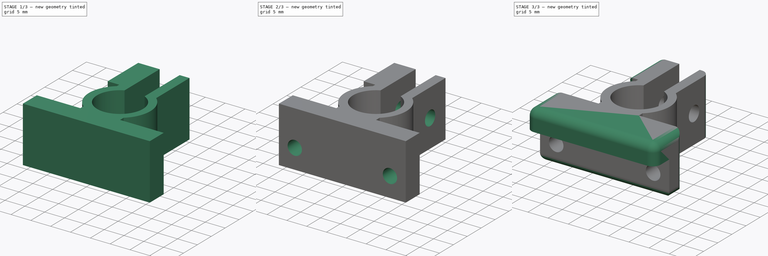
[diagram: build sequence overview — one tinted view per stage of 3, left to right]
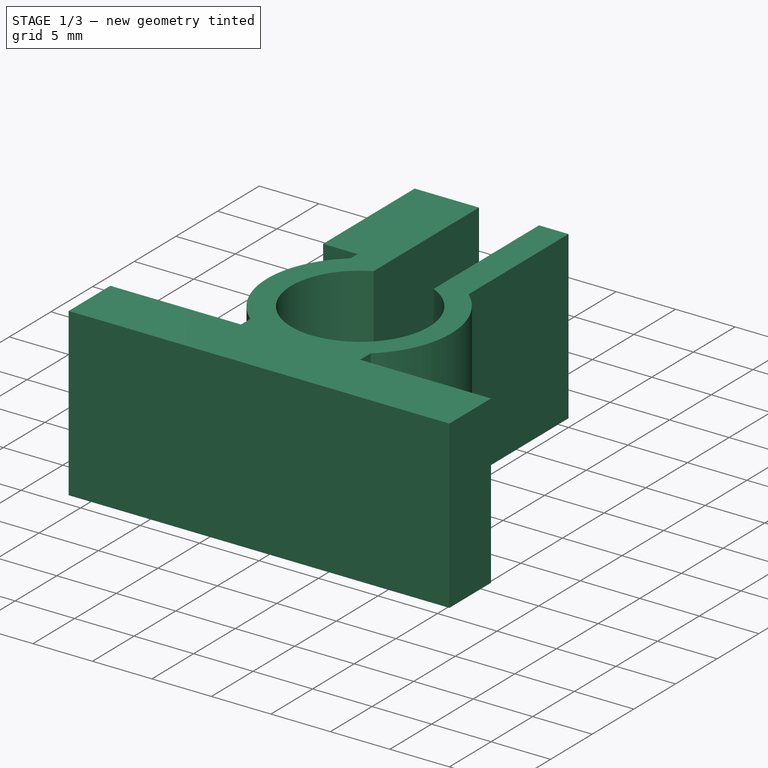
[diagram: stage 1 of 3 — iso view after this stage's code; geometry added in this stage tinted green]
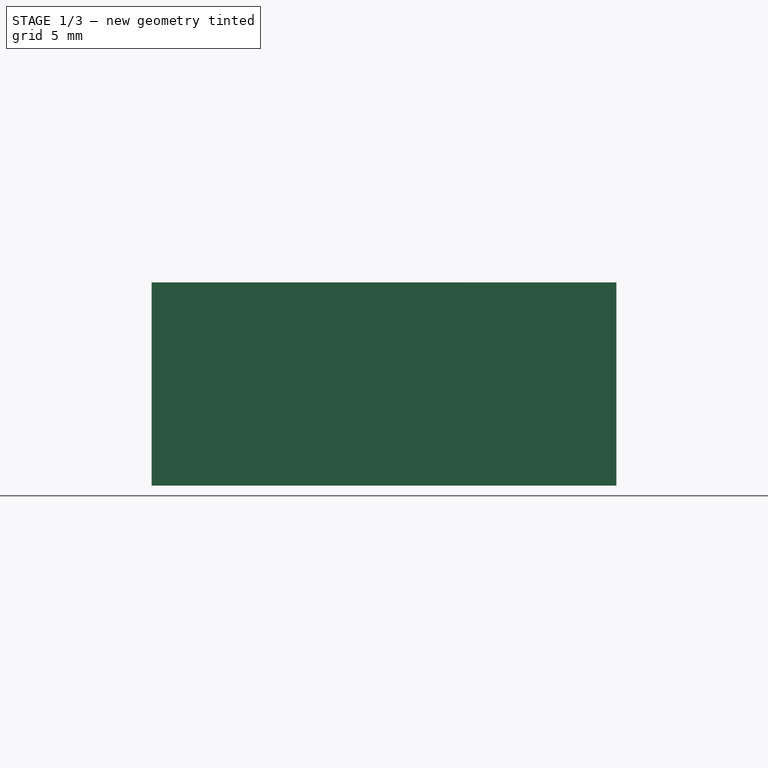
[diagram: stage 1 of 3 — front view after this stage's code; geometry added in this stage tinted green]
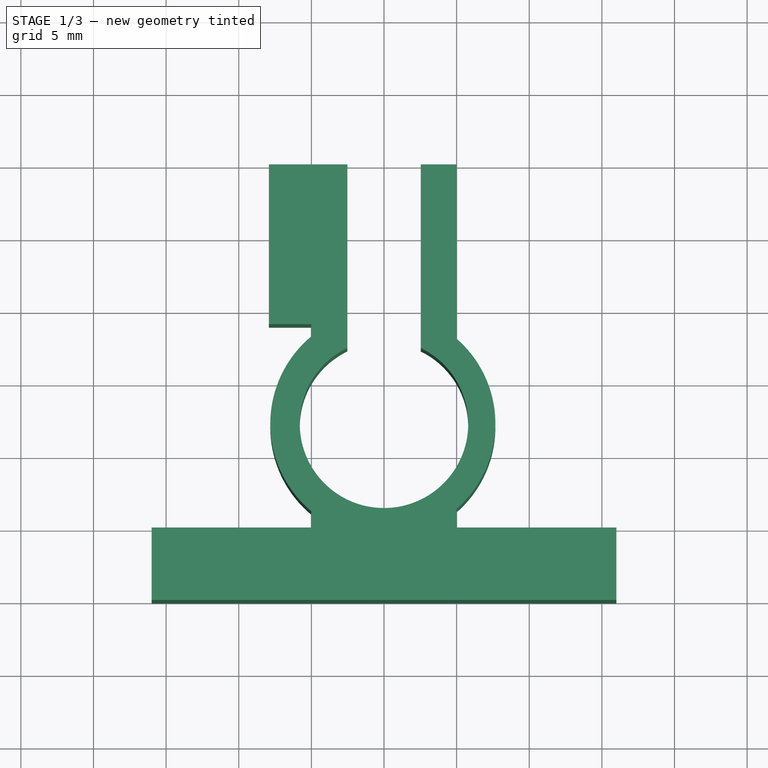
[diagram: stage 1 of 3 — top view after this stage's code; geometry added in this stage tinted green]
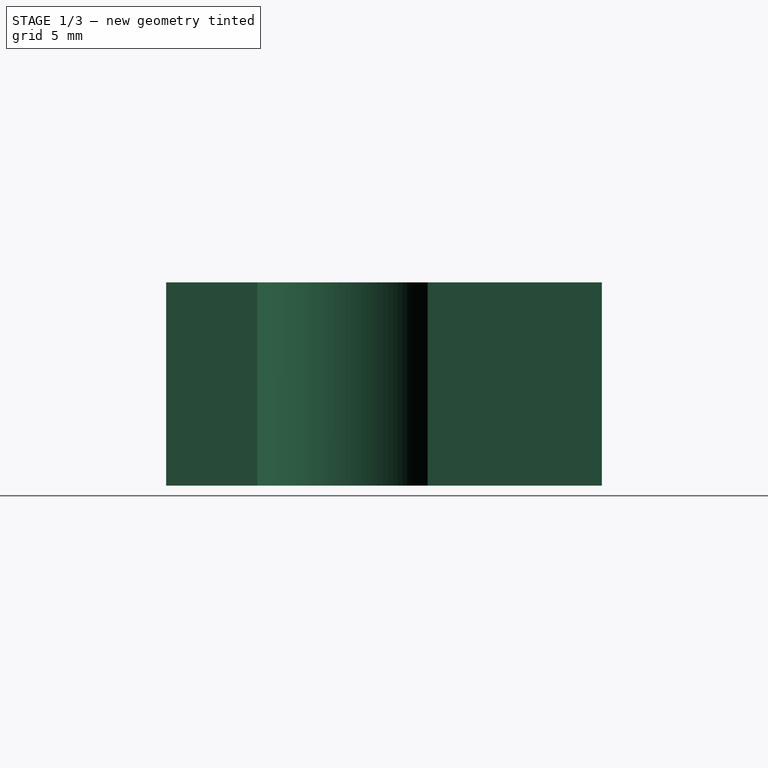
[diagram: stage 1 of 3 — right view after this stage's code; geometry added in this stage tinted green]
FCSTD DOCUMENT  (FreeCAD 0.16R6698 (Git))
Label: pnp camera holder
License: All rights reserved
LicenseURL: http://en.wikipedia.org/wiki/All_rights_reserved
objects: Sketcher::SketchObject×6, PartDesign::Pocket×4, PartDesign::Pad×2, PartDesign::Fillet×1
note: 19 computed .brp shape members not serialized (recipe doc carries the construction recipe); baked Part::Feature solids carry a one-line shape summary decoded from their .brp

FEATURE [Sketcher::SketchObject] Sketch
  sketch-geometry (11):
    g0: LineSegment StartX=-8 StartY=30 StartZ=0 EndX=8 EndY=30 EndZ=0
    g1: LineSegment StartX=8 StartY=30 StartZ=0 EndX=8 EndY=5 EndZ=0
    g2: LineSegment StartX=8 StartY=0 StartZ=0 EndX=-8 EndY=0 EndZ=0
    g3: LineSegment StartX=-8 StartY=5 StartZ=0 EndX=-8 EndY=30 EndZ=0
    g4: LineSegment StartX=-16 StartY=5 StartZ=0 EndX=-8 EndY=5 EndZ=0
    g5: LineSegment StartX=16 StartY=5 StartZ=0 EndX=16 EndY=0 EndZ=0
    g6: LineSegment StartX=16 StartY=0 StartZ=0 EndX=-16 EndY=0 EndZ=0
    g7: LineSegment StartX=-16 StartY=0 StartZ=0 EndX=-16 EndY=5 EndZ=0
    g8: LineSegment StartX=8 StartY=5 StartZ=0 EndX=16 EndY=5 EndZ=0
    g9: Circle [constr] CenterX=-12.1577 CenterY=-2 CenterZ=0 NormalX=0 NormalY=0 NormalZ=1 Radius=2.5
    g10: Circle [constr] CenterX=11.8423 CenterY=-2 CenterZ=0 NormalX=0 NormalY=0 NormalZ=1 Radius=2.5
  constraints (26):
    c: Coincident(g0,g1)
    c: Coincident(g3,g0)
    c: Horizontal(g0)
    c: Horizontal(g2)
    c: Vertical(g1)
    c: Vertical(g3)
    c: Symmetric(g0,g0,g-2)
    c: DistanceX(g0,g0) = 16
    c: PointOnObject(g2,g-1)
    c: DistanceY(g2,g3) = 30
    c: Coincident(g8,g5)
    c: Coincident(g5,g6)
    c: Coincident(g6,g7)
    c: Coincident(g7,g4)
    c: Horizontal(g4)
    c: Horizontal(g6)
    c: Vertical(g5)
    c: Vertical(g7)
    c: PointOnObject(g5,g-1)
    c: Symmetric(g4,g8,g-2)
    c: Coincident(g4,g3)
    c: Coincident(g8,g1)
    c: Tangent(g4,g8)
    c: DistanceX(g9,g10) = 24
    c: Radius(g9) = 2.5
    c: Equal(g9,g10)
FEATURE [PartDesign::Pad] Pad
  Length = 14
  Length2 = 100
  Sketch = -> Sketch
  Type = 0
FEATURE [Sketcher::SketchObject] Sketch002
  Placement = pos=(0,0,14) rot=(0,0,1;0rad)
  Support = -> Pad [Face10]
  sketch-geometry (18):
    g0: ArcOfCircle CenterX=0 CenterY=12.1385 CenterZ=0 NormalX=0 NormalY=0 NormalZ=1 Radius=7.83109 StartAngle=2.26545 EndAngle=4.01774
    g1: LineSegment StartX=5 StartY=31 StartZ=0 EndX=5 EndY=18 EndZ=0
    g2: LineSegment StartX=-5.01282 StartY=5 StartZ=0 EndX=-5.01282 EndY=6.12202 EndZ=0
    g3: ArcOfCircle CenterX=-0.0982917 CenterY=12.1385 CenterZ=0 NormalX=0 NormalY=0 NormalZ=1 Radius=7.76854 StartAngle=5.42826 EndAngle=7.13811
    g4: LineSegment StartX=-5.01282 StartY=18.1549 StartZ=0 EndX=-5.01282 EndY=19 EndZ=0
    g5: LineSegment StartX=5 StartY=6.27693 StartZ=0 EndX=5 EndY=5 EndZ=0
    g6: LineSegment StartX=5 StartY=31 StartZ=0 EndX=10 EndY=31 EndZ=0
    g7: LineSegment StartX=10 StartY=31 StartZ=0 EndX=10 EndY=5 EndZ=0
    g8: LineSegment StartX=10 StartY=5 StartZ=0 EndX=5 EndY=5 EndZ=0
    g9: LineSegment StartX=-7.92222 StartY=30.9444 StartZ=0 EndX=-8.89038 EndY=30.9264 EndZ=0
    g10: LineSegment StartX=-8.89038 StartY=30.9264 StartZ=0 EndX=-8.96816 EndY=5 EndZ=0
    g11: LineSegment StartX=-8.96816 StartY=5 StartZ=0 EndX=-5.01282 EndY=5 EndZ=0
    g12: ArcOfCircle CenterX=0 CenterY=12.1385 CenterZ=0 NormalX=0 NormalY=0 NormalZ=1 Radius=5.8 StartAngle=2.02048 EndAngle=7.40325
    g13: LineSegment StartX=-2.52114 StartY=31 StartZ=0 EndX=2.5266 EndY=31 EndZ=0
    g14: LineSegment StartX=2.5266 StartY=31 StartZ=0 EndX=2.5266 EndY=17.3592 EndZ=0
    g15: LineSegment StartX=-2.52114 StartY=17.3619 StartZ=0 EndX=-2.52114 EndY=31 EndZ=0
    g16: LineSegment StartX=-5.01282 StartY=19 StartZ=0 EndX=-7.92222 EndY=19 EndZ=0
    g17: LineSegment StartX=-7.92222 StartY=19 StartZ=0 EndX=-7.92222 EndY=30.9444 EndZ=0
  constraints (25):
    c: Coincident(g0,g2)
    c: Coincident(g4,g0)
    c: Coincident(g1,g3)
    c: Coincident(g6,g1)
    c: Coincident(g11,g2)
    c: Coincident(g5,g3)
    c: Coincident(g5,g8)
    c: Coincident(g6,g7)
    c: Coincident(g7,g8)
    c: Coincident(g10,g9)
    c: Coincident(g11,g10)
    c: Coincident(g12,g0)
    c: Radius(g12) = 5.8
    c: Coincident(g13,g14)
    c: Coincident(g15,g13)
    c: Horizontal(g13)
    c: Vertical(g14)
    c: Vertical(g15)
    c: Coincident(g14,g12)
    c: Coincident(g15,g12)
    c: Coincident(g16,g17)
    c: Horizontal(g16)
    c: Vertical(g17)
    c: Coincident(g17,g9)
    c: Coincident(g16,g4)
FEATURE [PartDesign::Pocket] Pocket
  Length = 5
  Sketch = -> Sketch002
  Type = 1
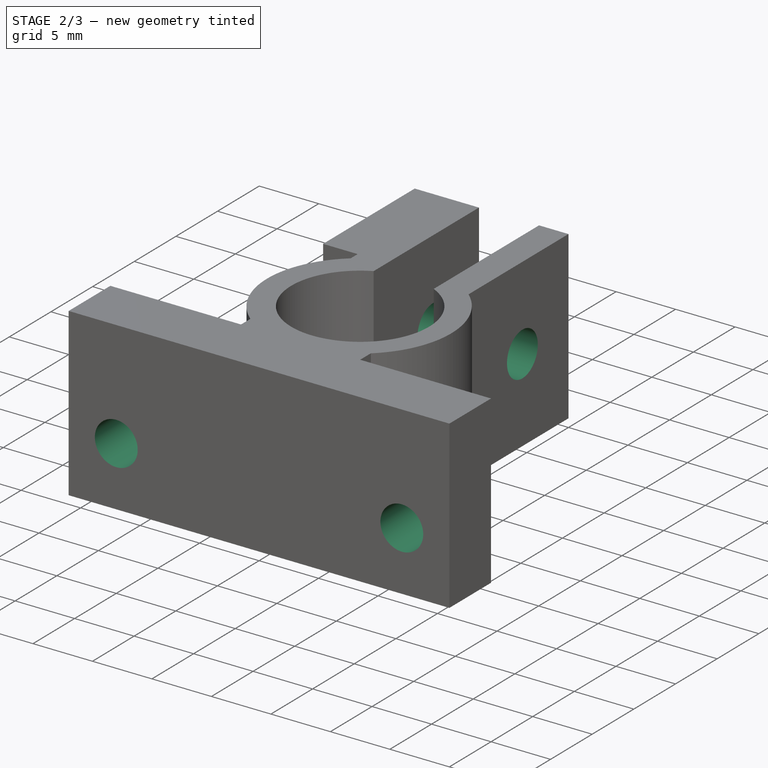
[diagram: stage 2 of 3 — iso view after this stage's code; geometry added in this stage tinted green]
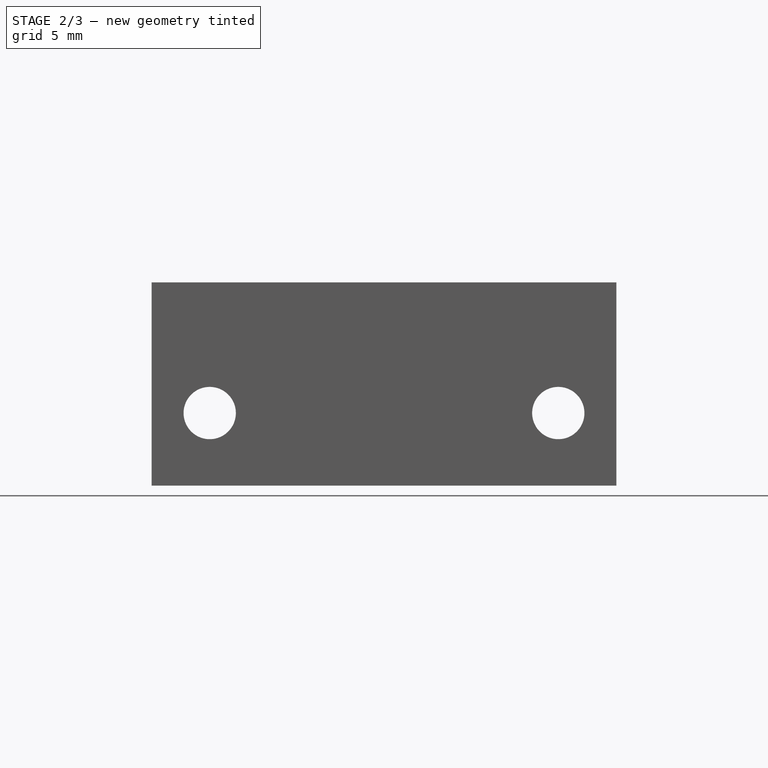
[diagram: stage 2 of 3 — front view after this stage's code; geometry added in this stage tinted green]
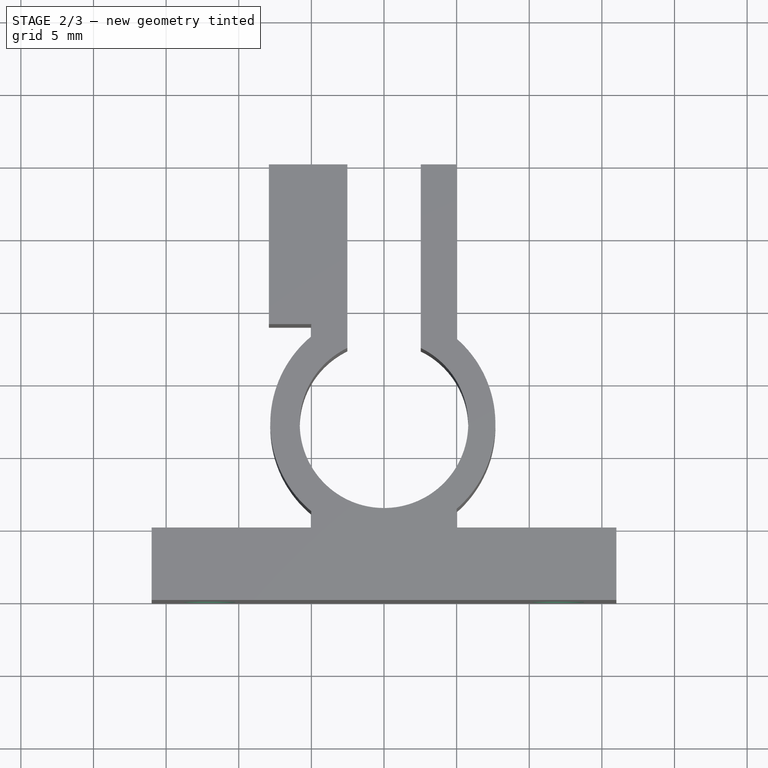
[diagram: stage 2 of 3 — top view after this stage's code; geometry added in this stage tinted green]
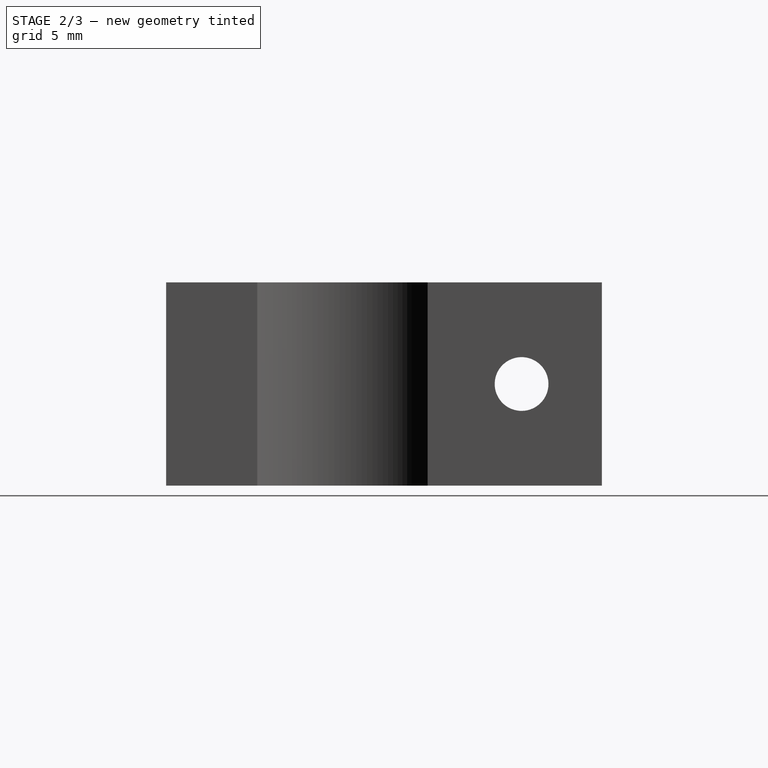
[diagram: stage 2 of 3 — right view after this stage's code; geometry added in this stage tinted green]
FEATURE [Sketcher::SketchObject] Sketch006
  Placement = pos=(-7.92222,0,0) rot=(0.57735,-0.57735,-0.57735;2.0944rad)
  Support = -> Pocket [Face5]
  sketch-geometry (7):
    g0: LineSegment StartX=-21.0862 StartY=5.03701 StartZ=0 EndX=-21.0862 EndY=8.96299 EndZ=0
    g1: LineSegment StartX=-21.0862 StartY=8.96299 StartZ=0 EndX=-24.4862 EndY=10.926 EndZ=0
    g2: LineSegment StartX=-24.4862 StartY=10.926 StartZ=0 EndX=-27.8862 EndY=8.96299 EndZ=0
    g3: LineSegment StartX=-27.8862 StartY=8.96299 StartZ=0 EndX=-27.8862 EndY=5.03701 EndZ=0
    g4: LineSegment StartX=-27.8862 StartY=5.03701 StartZ=0 EndX=-24.4862 EndY=3.07402 EndZ=0
    g5: LineSegment StartX=-24.4862 StartY=3.07402 StartZ=0 EndX=-21.0862 EndY=5.03701 EndZ=0
    g6: Circle [constr] CenterX=-24.4862 CenterY=7 CenterZ=0 NormalX=0 NormalY=0 NormalZ=1 Radius=3.92598
  constraints (15):
    c: Coincident(g0,g1)
    c: Coincident(g1,g2)
    c: Coincident(g2,g3)
    c: Coincident(g3,g4)
    c: Coincident(g4,g5)
    c: Coincident(g5,g0)
    c: Equal(g0, g1-g5) x5
    c: PointOnObject(g0,g6)
    c: PointOnObject(g1,g6)
    c: PointOnObject(g2,g6)
    c: PointOnObject(g3,g6)
    c: PointOnObject(g4,g6)
    c: PointOnObject(g5,g6)
    c: Vertical(g3)
    c: Distance(g2,g0) = 6.8
FEATURE [PartDesign::Pocket] Pocket001
  Length = 3
  Sketch = -> Sketch006
  Type = 0
FEATURE [Sketcher::SketchObject] Sketch007
  ExternalGeometry = -> [Pocket001]
  Placement = pos=(5,-1e-12,0) rot=(0.57735,0.57735,0.57735;2.0944rad)
  Support = -> Pocket001 [Face9]
  sketch-geometry (1):
    g0: Circle CenterX=24.4722 CenterY=7 CenterZ=0 NormalX=0 NormalY=0 NormalZ=1 Radius=1.85
  constraints (1):
    c: Radius(g0) = 1.85
FEATURE [PartDesign::Pocket] Pocket002
  Length = 5
  Sketch = -> Sketch007
  Type = 1
FEATURE [Sketcher::SketchObject] Sketch008
  Placement = pos=(0,0,0) rot=(1,0,0;1.5708rad)
  Support = -> Pocket002 [Face14]
  sketch-geometry (2):
    g0: Circle CenterX=-12 CenterY=5 CenterZ=0 NormalX=0 NormalY=0 NormalZ=1 Radius=1.8
    g1: Circle CenterX=12 CenterY=5 CenterZ=0 NormalX=0 NormalY=0 NormalZ=1 Radius=1.8
  constraints (3):
    c: Radius(g0) = 1.8
    c: Equal(g0,g1)
    c: DistanceX(g0,g1) = 24
FEATURE [PartDesign::Pocket] Pocket003
  Length = 5
  Sketch = -> Sketch008
  Type = 0
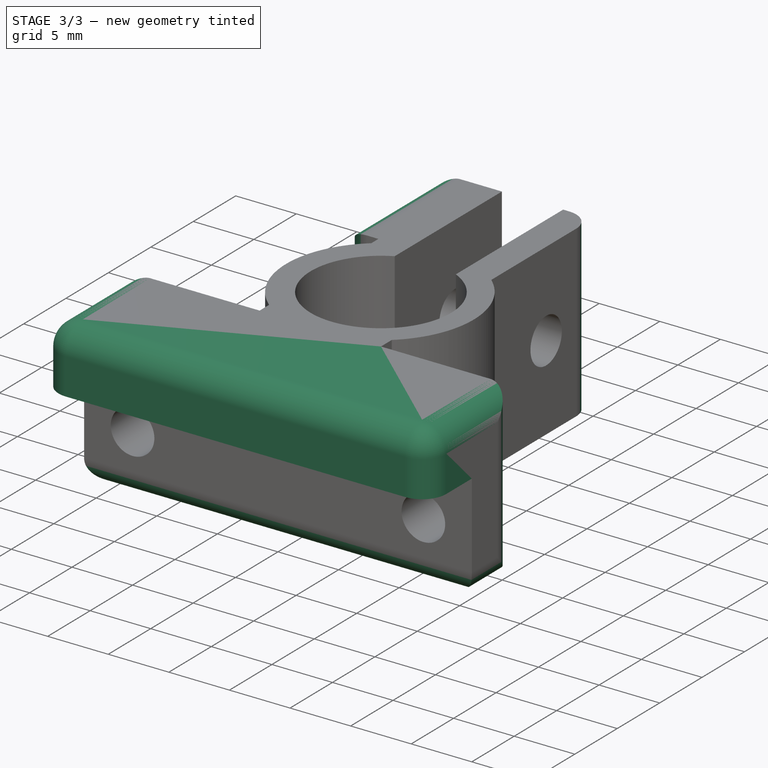
[diagram: stage 3 of 3 — iso view after this stage's code; geometry added in this stage tinted green]
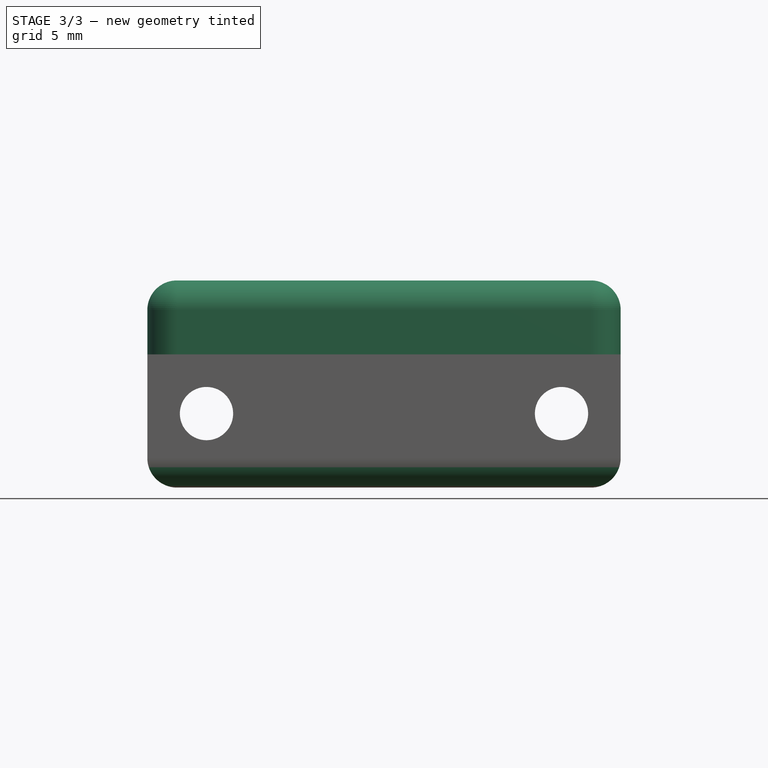
[diagram: stage 3 of 3 — front view after this stage's code; geometry added in this stage tinted green]
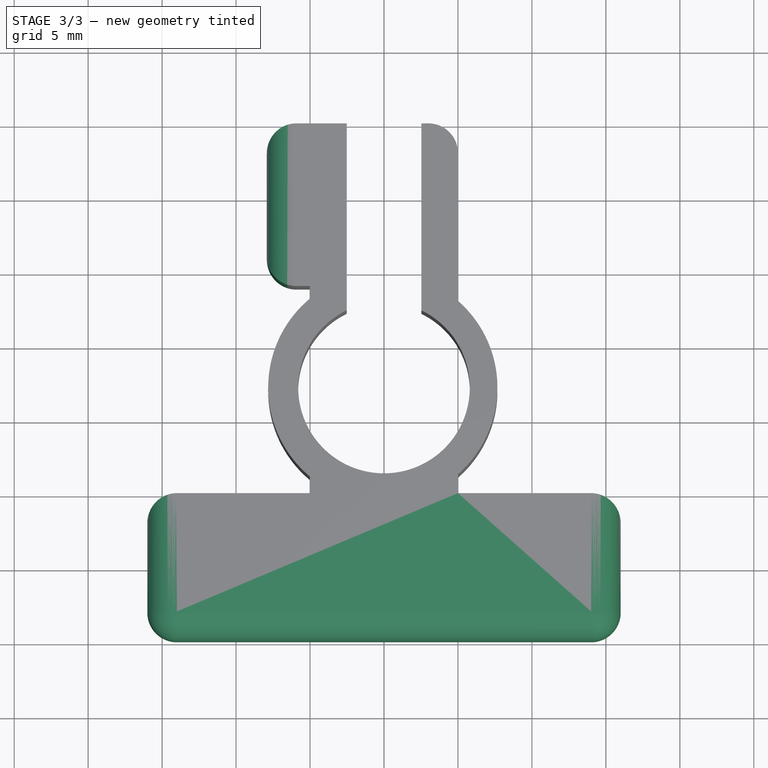
[diagram: stage 3 of 3 — top view after this stage's code; geometry added in this stage tinted green]
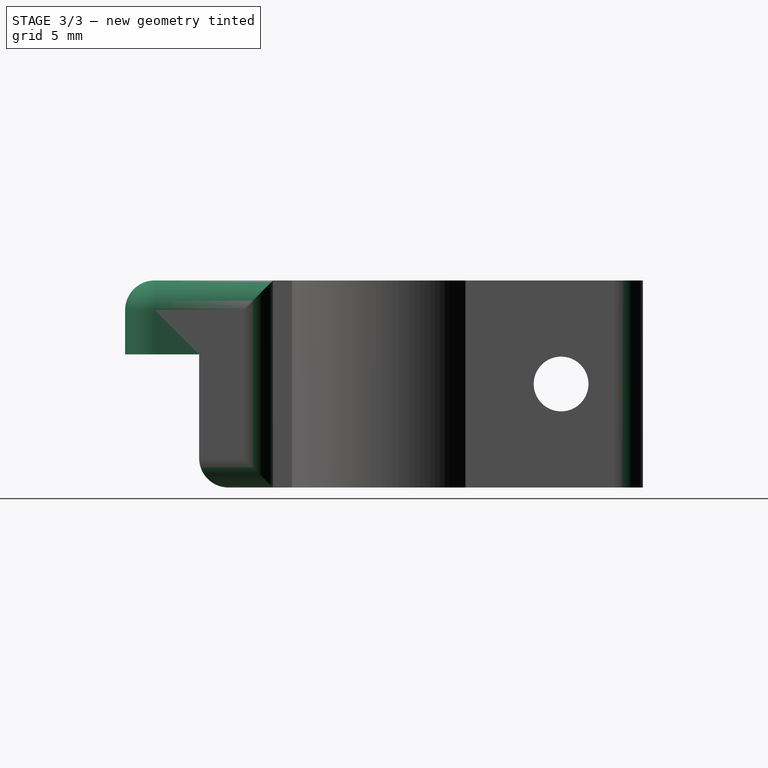
[diagram: stage 3 of 3 — right view after this stage's code; geometry added in this stage tinted green]
FEATURE [Sketcher::SketchObject] Sketch009
  ExternalGeometry = -> [Pocket003]
  Placement = pos=(0,0,0) rot=(1,0,0;1.5708rad)
  Support = -> Pocket003 [Face14]
  sketch-geometry (4):
    g0: LineSegment StartX=-16 StartY=14 StartZ=0 EndX=16 EndY=14 EndZ=0
    g1: LineSegment StartX=16 StartY=14 StartZ=0 EndX=16 EndY=9 EndZ=0
    g2: LineSegment StartX=16 StartY=9 StartZ=0 EndX=-16 EndY=9 EndZ=0
    g3: LineSegment StartX=-16 StartY=9 StartZ=0 EndX=-16 EndY=14 EndZ=0
  constraints (9):
    c: Coincident(g0,g1)
    c: Coincident(g1,g2)
    c: Coincident(g2,g3)
    c: Coincident(g3,g0)
    c: Horizontal(g0)
    c: Horizontal(g2)
    c: Vertical(g1)
    c: Vertical(g3)
    c: Coincident(g0,g-4)
FEATURE [PartDesign::Pad] Pad001
  Length = 5
  Length2 = 100
  Sketch = -> Sketch009
  Type = 0
FEATURE [PartDesign::Fillet] Fillet
  Base = -> Pad001 [Edge88,Edge87,Edge48,Edge38,Edge55,Edge4,Edge14,Edge89,Edge86,Edge90,Edge13,Edge15,Edge21,Edge25,Edge26]
  Radius = 2
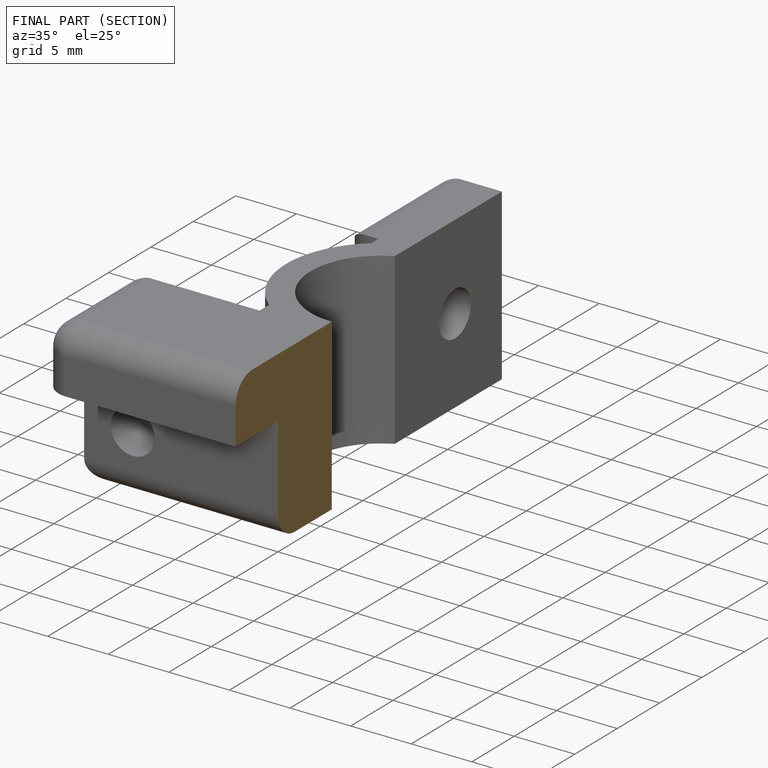
[diagram: finished part — half-section view (interior)]
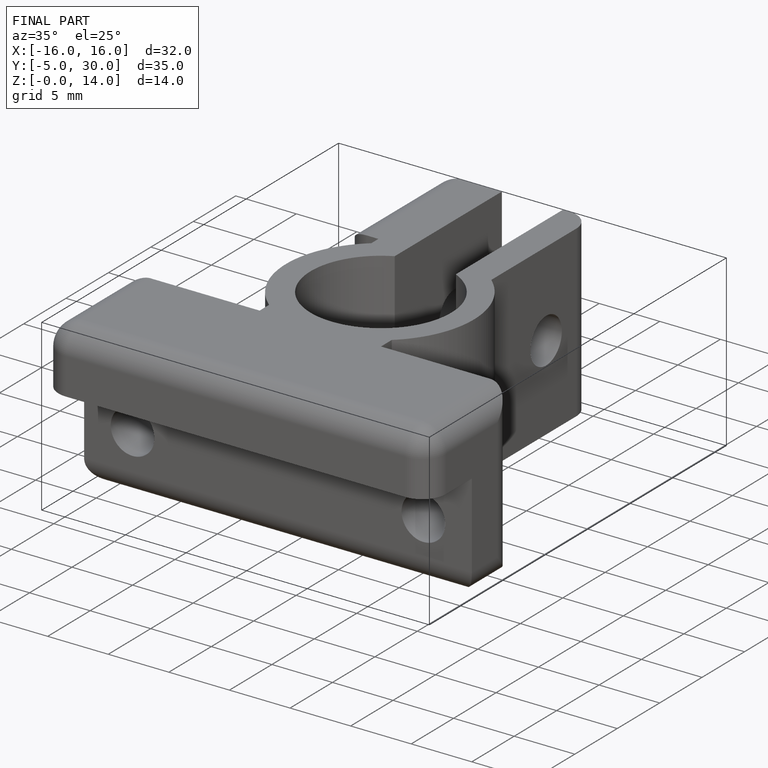
[diagram: finished part — iso view with bounding-box wireframe]
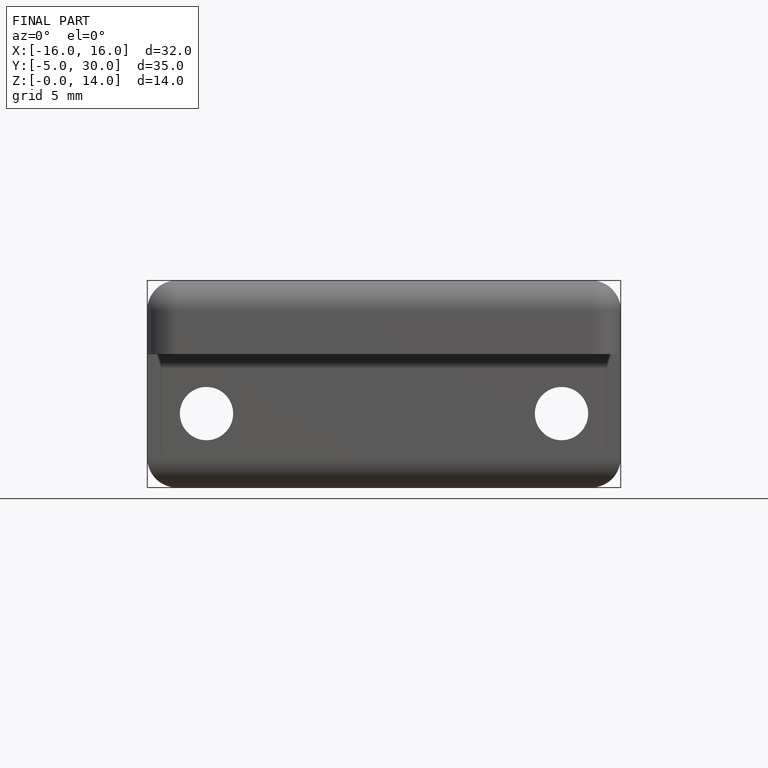
[diagram: finished part — front view with bounding-box wireframe]
